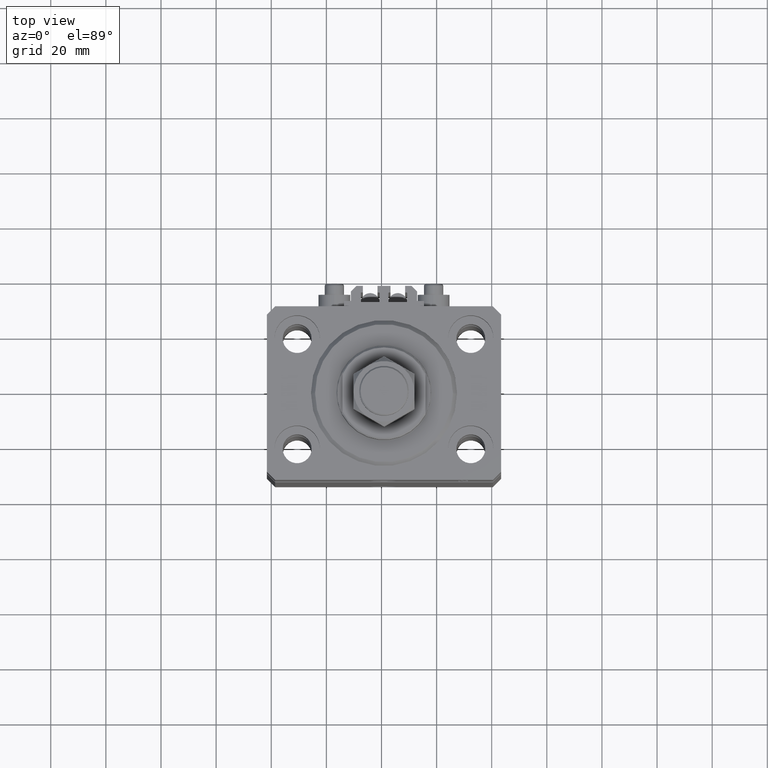
[diagram: clean part render]
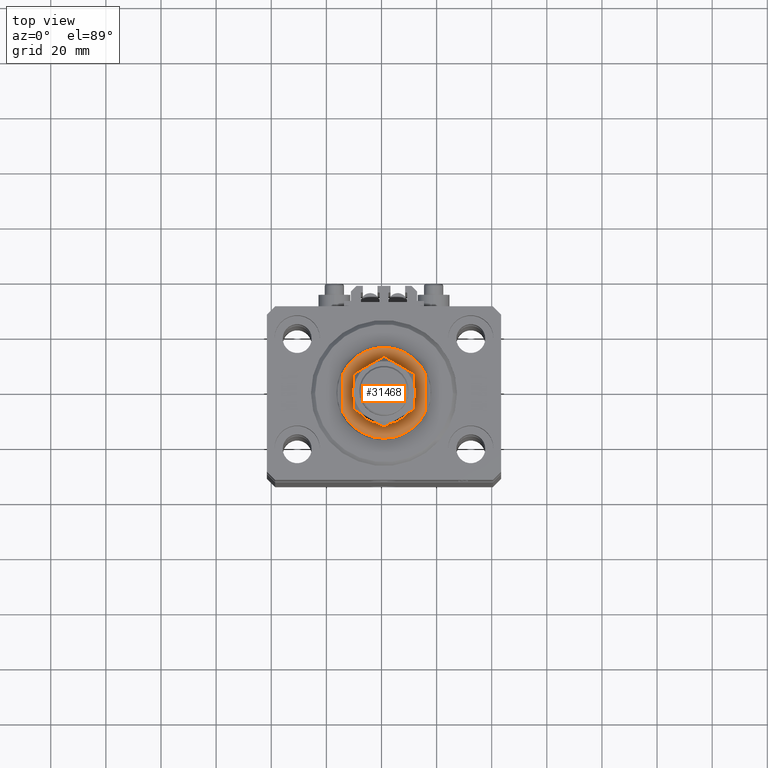
[diagram: same view with one face highlighted and labeled with its STEP entity id]
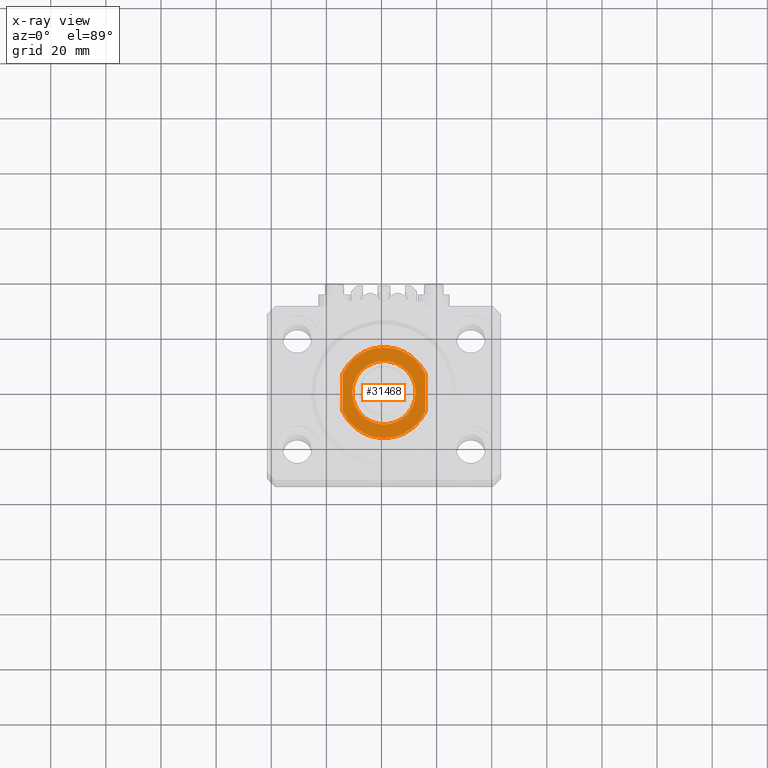
[diagram: x-ray of the same camera — body ghosted, the highlighted face saturated]
A machine part, top view. The second image highlights one B-rep face of the part: STEP entity #31468.
The next image is the same camera in x-ray: the body ghosted, the highlighted face saturated — about 0% of this face is hidden behind the body in this view.
In plain terms, the highlighted planar face has unit normal (0, 0, 1).
Its self-contained STEP definition (entity closure, byte-faithful):
#2387 = AXIS2_PLACEMENT_3D ( 'NONE', #26740, #3210, #38788 ) ;
#2933 = DIRECTION ( 'NONE',  ( 0.000000000000000000, -1.000000000000000000, -0.000000000000000000 ) ) ;
#3210 = DIRECTION ( 'NONE',  ( -0.000000000000000000, -0.000000000000000000, 1.000000000000000000 ) ) ;
#3346 = CARTESIAN_POINT ( 'NONE',  ( -14.99999999999999645, 6.873863542433781504, -7.000000000000000000 ) ) ;
#4103 = LINE ( 'NONE', #23023, #23410 ) ;
#5070 = EDGE_CURVE ( 'NONE', #20544, #37853, #35087, .T. ) ;
#8221 = EDGE_CURVE ( 'NONE', #37853, #20544, #29477, .T. ) ;
#11026 = DIRECTION ( 'NONE',  ( -1.000000000000000000, 0.000000000000000000, 0.000000000000000000 ) ) ;
#12454 = CARTESIAN_POINT ( 'NONE',  ( -11.49999999999999645, 0.000000000000000000, -7.000000000000000000 ) ) ;
#13404 = VERTEX_POINT ( 'NONE', #29787 ) ;
#13824 = ORIENTED_EDGE ( 'NONE', *, *, #8221, .T. ) ;
#15122 = CARTESIAN_POINT ( 'NONE',  ( 0.000000000000000000, 0.000000000000000000, -7.000000000000000000 ) ) ;
#16370 = ORIENTED_EDGE ( 'NONE', *, *, #47511, .T. ) ;
#17833 = AXIS2_PLACEMENT_3D ( 'NONE', #15122, #46070, #11026 ) ;
#18863 = CARTESIAN_POINT ( 'NONE',  ( -15.00000000000000000, -6.873863542433783280, -7.000000000000000000 ) ) ;
#19899 = ORIENTED_EDGE ( 'NONE', *, *, #40437, .F. ) ;
#20544 = VERTEX_POINT ( 'NONE', #35769 ) ;
#20722 = DIRECTION ( 'NONE',  ( -1.000000000000000000, 0.000000000000000000, 0.000000000000000000 ) ) ;
#22157 = VECTOR ( 'NONE', #2933, 1000.000000000000000 ) ;
#22348 = EDGE_LOOP ( 'NONE', ( #13824, #48867 ) ) ;
#22650 = EDGE_CURVE ( 'NONE', #26757, #40625, #38724, .T. ) ;
#23023 = CARTESIAN_POINT ( 'NONE',  ( -15.00000000000000000, -42.42640687119285303, -7.000000000000000000 ) ) ;
#23270 = DIRECTION ( 'NONE',  ( -0.000000000000000000, -1.000000000000000000, -0.000000000000000000 ) ) ;
#23410 = VECTOR ( 'NONE', #23270, 1000.000000000000000 ) ;
#25589 = ORIENTED_EDGE ( 'NONE', *, *, #22650, .T. ) ;
#25878 = VERTEX_POINT ( 'NONE', #18863 ) ;
#25975 = CARTESIAN_POINT ( 'NONE',  ( 15.00000000000000000, -42.42640687119285303, -7.000000000000000000 ) ) ;
#26740 = CARTESIAN_POINT ( 'NONE',  ( 0.000000000000000000, 0.000000000000000000, -7.000000000000000000 ) ) ;
#26757 = VERTEX_POINT ( 'NONE', #3346 ) ;
#26807 = CIRCLE ( 'NONE', #17833, 16.50000000000000711 ) ;
#28950 = EDGE_LOOP ( 'NONE', ( #25589, #40440, #16370, #19899 ) ) ;
#29067 = CARTESIAN_POINT ( 'NONE',  ( 0.000000000000000000, 0.000000000000000000, -7.000000000000000000 ) ) ;
#29128 = FACE_BOUND ( 'NONE', #22348, .T. ) ;
#29477 = CIRCLE ( 'NONE', #45001, 11.49999999999999645 ) ;
#29787 = CARTESIAN_POINT ( 'NONE',  ( 14.99999999999999645, -6.873863542433781504, -7.000000000000000000 ) ) ;
#30525 = AXIS2_PLACEMENT_3D ( 'NONE', #29067, #40596, #49013 ) ;
#31468 = ADVANCED_FACE ( 'NONE', ( #29128, #47826 ), #43993, .T. ) ;
#32008 = CARTESIAN_POINT ( 'NONE',  ( 0.000000000000000000, 0.000000000000000000, -7.000000000000000000 ) ) ;
#35087 = CIRCLE ( 'NONE', #2387, 11.49999999999999645 ) ;
#35769 = CARTESIAN_POINT ( 'NONE',  ( 11.49999999999999645, 1.408343819019455781E-15, -7.000000000000000000 ) ) ;
#36333 = CARTESIAN_POINT ( 'NONE',  ( 14.99999999999999645, 6.873863542433781504, -7.000000000000000000 ) ) ;
#37073 = DIRECTION ( 'NONE',  ( 0.000000000000000000, 0.000000000000000000, -1.000000000000000000 ) ) ;
#37853 = VERTEX_POINT ( 'NONE', #12454 ) ;
#38724 = CIRCLE ( 'NONE', #30525, 16.50000000000000711 ) ;
#38788 = DIRECTION ( 'NONE',  ( -1.000000000000000000, 0.000000000000000000, 0.000000000000000000 ) ) ;
#40099 = EDGE_CURVE ( 'NONE', #40625, #13404, #44923, .T. ) ;
#40415 = CARTESIAN_POINT ( 'NONE',  ( 0.000000000000000000, 0.000000000000000000, -7.000000000000000000 ) ) ;
#40437 = EDGE_CURVE ( 'NONE', #26757, #25878, #4103, .T. ) ;
#40440 = ORIENTED_EDGE ( 'NONE', *, *, #40099, .T. ) ;
#40596 = DIRECTION ( 'NONE',  ( 0.000000000000000000, 0.000000000000000000, -1.000000000000000000 ) ) ;
#40625 = VERTEX_POINT ( 'NONE', #36333 ) ;
#41368 = AXIS2_PLACEMENT_3D ( 'NONE', #40415, #37073, #43742 ) ;
#43517 = DIRECTION ( 'NONE',  ( -0.000000000000000000, -0.000000000000000000, 1.000000000000000000 ) ) ;
#43742 = DIRECTION ( 'NONE',  ( -1.000000000000000000, 0.000000000000000000, -0.000000000000000000 ) ) ;
#43993 = PLANE ( 'NONE',  #41368 ) ;
#44923 = LINE ( 'NONE', #25975, #22157 ) ;
#45001 = AXIS2_PLACEMENT_3D ( 'NONE', #32008, #43517, #20722 ) ;
#46070 = DIRECTION ( 'NONE',  ( 0.000000000000000000, 0.000000000000000000, -1.000000000000000000 ) ) ;
#47511 = EDGE_CURVE ( 'NONE', #13404, #25878, #26807, .T. ) ;
#47826 = FACE_OUTER_BOUND ( 'NONE', #28950, .T. ) ;
#48867 = ORIENTED_EDGE ( 'NONE', *, *, #5070, .T. ) ;
#49013 = DIRECTION ( 'NONE',  ( -1.000000000000000000, 0.000000000000000000, 0.000000000000000000 ) ) ;